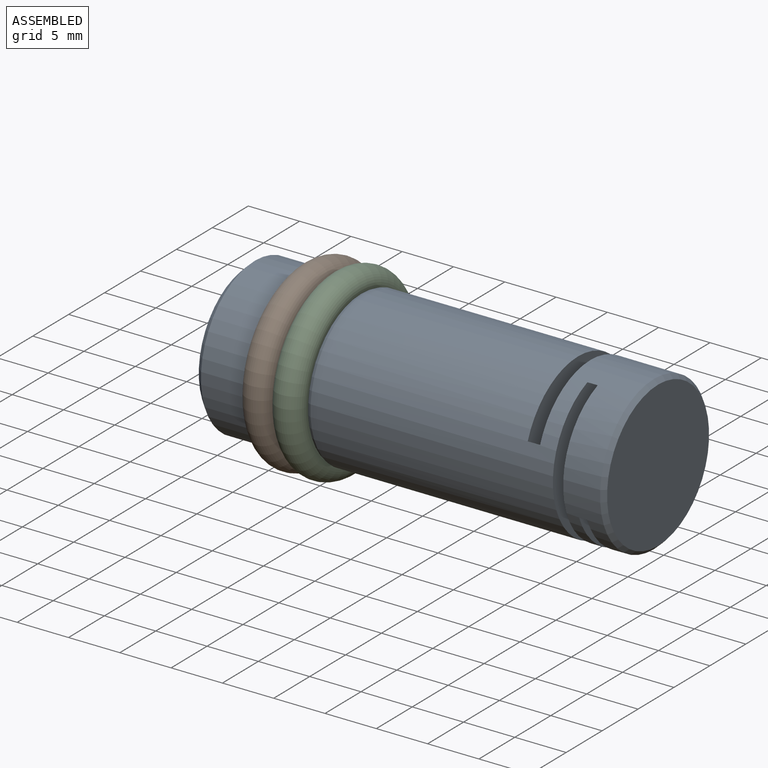
[diagram: assembled view]
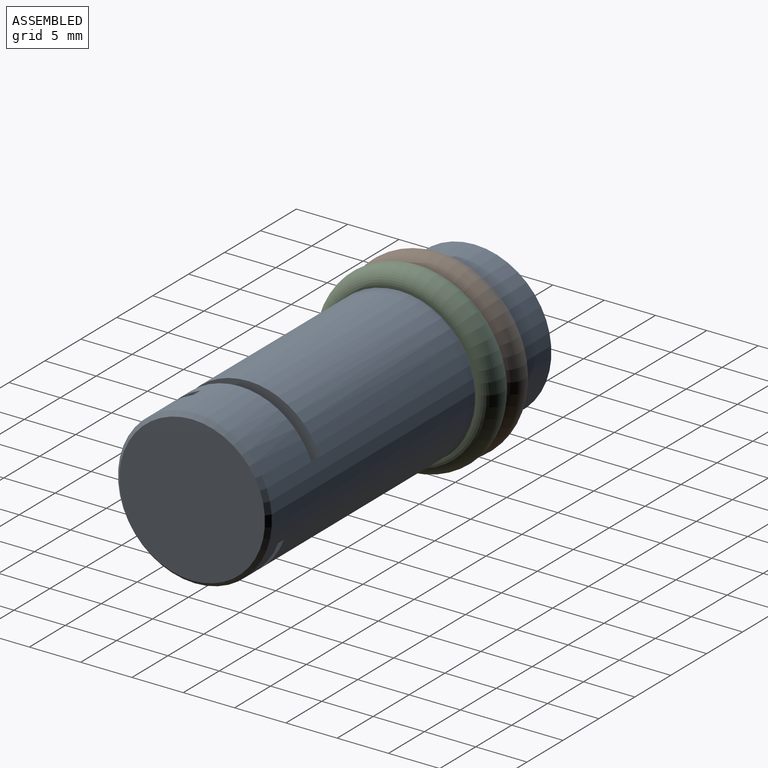
[diagram: assembled view, second angle]
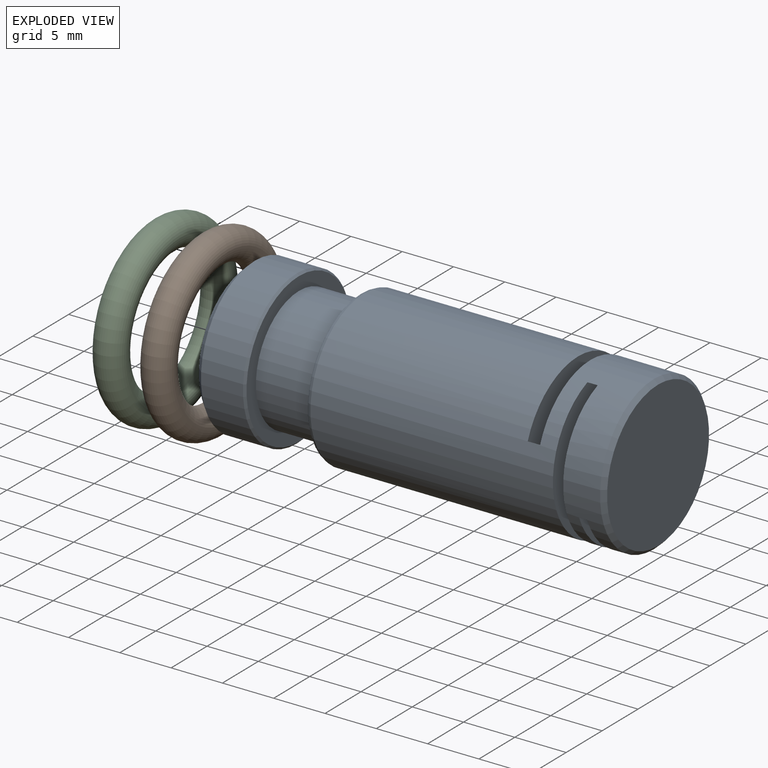
[diagram: exploded view]
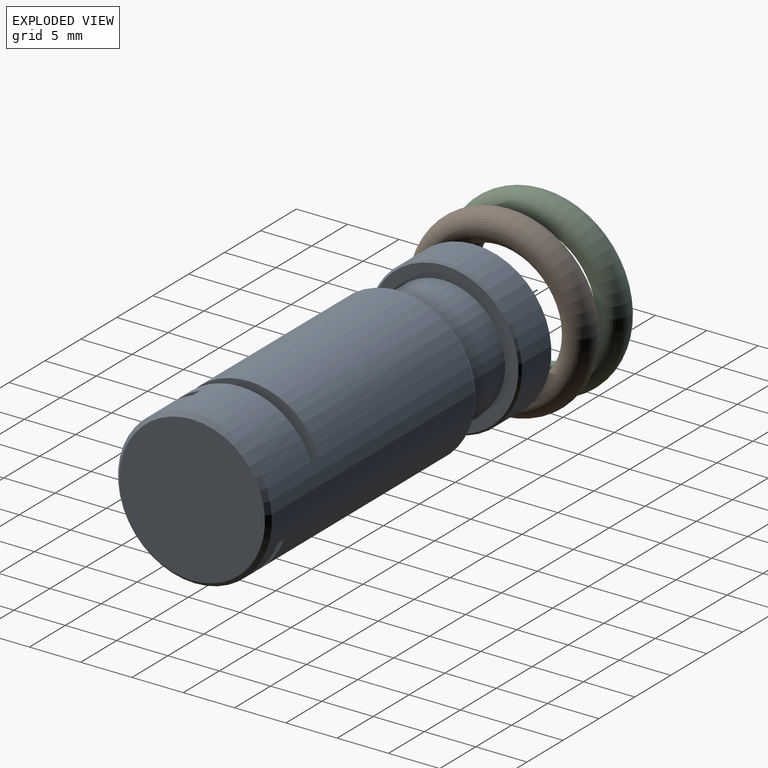
[diagram: exploded view, second angle]
ASSEMBLY  parts=3 mates=2
PART A: 27 faces, bbox 40x15x15 mm
  f0: cylinder r=7.5mm len=28.23mm, axis (-1,0,0), area 1276.3mm2, adj f10,f11,f12,f13,f14,f15,f17,f18
  f1: plane 14.6x14.6mm, normal (-1,0,0), area 54.3mm2, adj f2,f8
  f2: cylinder r=6mm len=12mm, axis (-1,0,0), area 226.2mm2, adj f1,f3
  f3: plane 14.6x14.6mm, normal (1,0,0), area 54.3mm2, adj f2,f9
  f4: cylinder r=7.5mm len=15mm, axis (-1,0,0), area 193.2mm2, adj f7,f9
  f5: plane 13.6x13.6mm, normal (-1,0,0), area 145.3mm2, adj f7
  f6: plane 14.2x14.2mm, normal (1,0,0), area 158.4mm2, adj f11
  f7: cone r=6.8mm half-angle=45deg, axis (1,0,0), area 44.5mm2, adj f4,f5
  f8: cone r=7.3mm half-angle=45deg, axis (1,0,0), area 5.4mm2, adj f1,f10
  f9: cone r=7.5mm half-angle=45deg, axis (-1,0,0), area 13.2mm2, adj f3,f4
  f10: cone r=7.5mm half-angle=22.5deg, axis (1,0,0), area 14.3mm2, adj f0,f8
  f11: cone r=7.5mm half-angle=45deg, axis (-1,0,0), area 25.9mm2, adj f0,f6
  f12: plane 2.69x1mm, normal (0,0,1), area 2.7mm2, adj f0,f13,f15,f16
  f13: plane 14x7.5mm, normal (-1,0,0), area 86.5mm2, adj f0,f12,f14,f16
  f14: plane 2.69x1mm, normal (0,0,-1), area 2.7mm2, adj f0,f13,f15,f16
  f15: plane 14x7.5mm, normal (1,0,0), area 86.5mm2, adj f0,f12,f14,f16
  f16: plane 14x1mm, normal (0,-1,0), area 14mm2, adj f12,f13,f14,f15
  f17: plane 2.69x1.2mm, normal (0,-1,0), area 3.2mm2, adj f0,f18,f20,f21
  f18: plane 14x7.5mm, normal (1,0,0), area 86.5mm2, adj f0,f17,f19,f21
  f19: plane 2.69x1.2mm, normal (0,1,0), area 3.2mm2, adj f0,f18,f20,f21
  f20: plane 14x7.5mm, normal (-1,0,0), area 86.5mm2, adj f0,f17,f19,f21
  f21: plane 14x1.2mm, normal (0,0,1), area 16.8mm2, adj f17,f18,f19,f20
  f22: plane 14x7.5mm, normal (-1,0,0), area 86.5mm2, adj f0,f23,f25,f26
  f23: plane 2.69x0.8mm, normal (0,-1,0), area 2.2mm2, adj f0,f22,f24,f26
  f24: plane 14x7.5mm, normal (1,0,0), area 86.5mm2, adj f0,f23,f25,f26
  f25: plane 2.69x0.8mm, normal (0,1,0), area 2.2mm2, adj f0,f22,f24,f26
  f26: plane 14x0.8mm, normal (0,0,-1), area 11.2mm2, adj f22,f23,f24,f25
PART B: 1 faces, bbox 3x19.5x19.5 mm
  f0: torus R=7.5mm, axis (-1,0,0), area 444.1mm2
PART C: same geometry as B
PLACE A t=(16.81,36.63,3.1)mm
PLACE B rot(axis=(-1,0,0),0deg) t=(23.39,36.63,3.1)mm
PLACE C t=(26.32,36.63,3.1)mm
MATE cylindrical A.f0 <-> C.f0  axis (-1,0,0) through (24.81,36.63,3.1)mm
MATE cylindrical A.f0 <-> B.f0  axis (-1,0,0) through (21.81,36.63,3.1)mm
